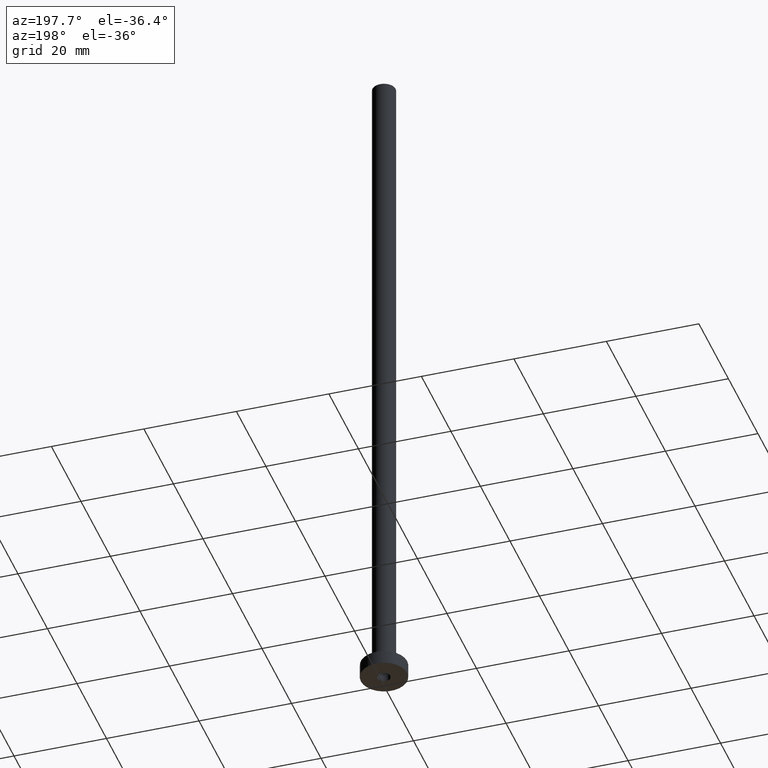
[diagram: clean part render]
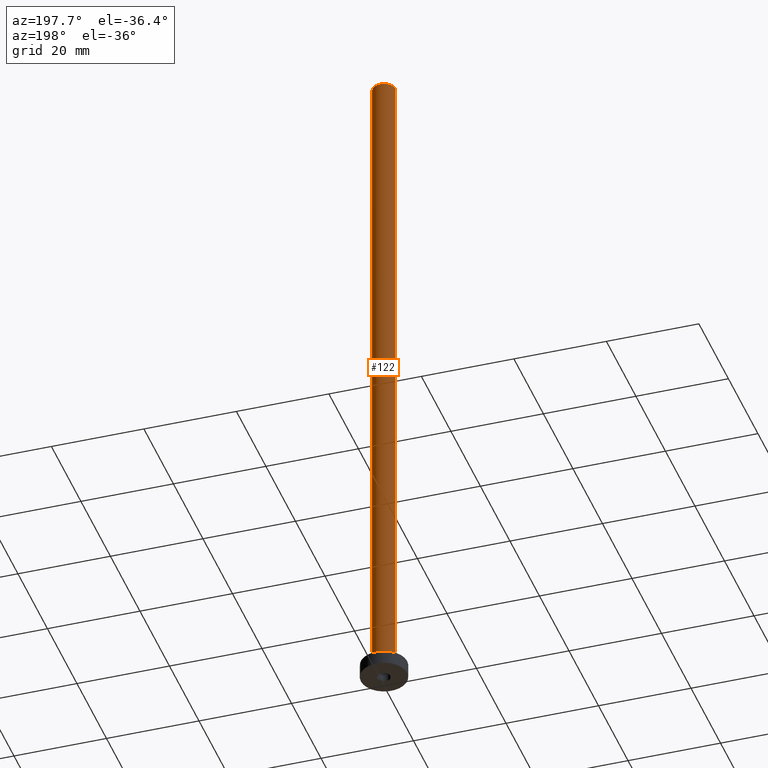
[diagram: same view with one face highlighted and labeled with its STEP entity id]
A machine part, auxiliary view. The second image highlights one B-rep face of the part: STEP entity #122.
In plain terms, the highlighted cylindrical surface (edge-blend (fillet) strip) has radius 2.5 mm, axis along (-0, -0, -1).
Its self-contained STEP definition (entity closure, byte-faithful):
#6 = EDGE_CURVE ( 'NONE', #67, #351, #92, .T. ) ;
#34 = VECTOR ( 'NONE', #180, 1000.000000000000000 ) ;
#67 = VERTEX_POINT ( 'NONE', #387 ) ;
#70 = CARTESIAN_POINT ( 'NONE',  ( 0.000000000000000000, 0.000000000000000000, 150.0000000000000000 ) ) ;
#79 = DIRECTION ( 'NONE',  ( 1.000000000000000000, 0.000000000000000000, 0.000000000000000000 ) ) ;
#91 = VERTEX_POINT ( 'NONE', #389 ) ;
#92 = CIRCLE ( 'NONE', #339, 2.500000000000000000 ) ;
#96 = EDGE_CURVE ( 'NONE', #414, #91, #219, .T. ) ;
#99 = CARTESIAN_POINT ( 'NONE',  ( 2.500000000000000000, 3.061616997868383141E-16, 3.299999999999997158 ) ) ;
#108 = AXIS2_PLACEMENT_3D ( 'NONE', #188, #284, #114 ) ;
#114 = DIRECTION ( 'NONE',  ( 1.000000000000000000, 0.000000000000000000, 0.000000000000000000 ) ) ;
#122 = ADVANCED_FACE ( 'NONE', ( #292 ), #429, .T. ) ;
#146 = VECTOR ( 'NONE', #163, 1000.000000000000000 ) ;
#155 = ORIENTED_EDGE ( 'NONE', *, *, #384, .T. ) ;
#158 = ORIENTED_EDGE ( 'NONE', *, *, #96, .T. ) ;
#163 = DIRECTION ( 'NONE',  ( -0.000000000000000000, -0.000000000000000000, -1.000000000000000000 ) ) ;
#180 = DIRECTION ( 'NONE',  ( -0.000000000000000000, -0.000000000000000000, -1.000000000000000000 ) ) ;
#188 = CARTESIAN_POINT ( 'NONE',  ( 0.000000000000000000, 0.000000000000000000, 3.299999999999997158 ) ) ;
#189 = DIRECTION ( 'NONE',  ( -0.000000000000000000, -0.000000000000000000, -1.000000000000000000 ) ) ;
#196 = CARTESIAN_POINT ( 'NONE',  ( -2.500000000000000000, 0.000000000000000000, 150.0000000000000000 ) ) ;
#204 = ORIENTED_EDGE ( 'NONE', *, *, #6, .F. ) ;
#209 = CARTESIAN_POINT ( 'NONE',  ( 2.500000000000000000, 3.061616997868383141E-16, 150.0000000000000000 ) ) ;
#219 = CIRCLE ( 'NONE', #108, 2.500000000000000000 ) ;
#236 = LINE ( 'NONE', #196, #146 ) ;
#246 = DIRECTION ( 'NONE',  ( 0.000000000000000000, 0.000000000000000000, 1.000000000000000000 ) ) ;
#255 = EDGE_CURVE ( 'NONE', #351, #91, #236, .T. ) ;
#276 = ORIENTED_EDGE ( 'NONE', *, *, #255, .F. ) ;
#284 = DIRECTION ( 'NONE',  ( 0.000000000000000000, 0.000000000000000000, 1.000000000000000000 ) ) ;
#292 = FACE_OUTER_BOUND ( 'NONE', #453, .T. ) ;
#319 = CARTESIAN_POINT ( 'NONE',  ( -2.500000000000000000, 0.000000000000000000, 150.0000000000000000 ) ) ;
#339 = AXIS2_PLACEMENT_3D ( 'NONE', #361, #246, #79 ) ;
#351 = VERTEX_POINT ( 'NONE', #319 ) ;
#356 = AXIS2_PLACEMENT_3D ( 'NONE', #70, #189, #396 ) ;
#361 = CARTESIAN_POINT ( 'NONE',  ( 0.000000000000000000, 0.000000000000000000, 150.0000000000000000 ) ) ;
#383 = LINE ( 'NONE', #209, #34 ) ;
#384 = EDGE_CURVE ( 'NONE', #67, #414, #383, .T. ) ;
#387 = CARTESIAN_POINT ( 'NONE',  ( 2.500000000000000000, 3.061616997868383141E-16, 150.0000000000000000 ) ) ;
#389 = CARTESIAN_POINT ( 'NONE',  ( -2.500000000000000000, 0.000000000000000000, 3.299999999999997158 ) ) ;
#396 = DIRECTION ( 'NONE',  ( -1.000000000000000000, 0.000000000000000000, 0.000000000000000000 ) ) ;
#414 = VERTEX_POINT ( 'NONE', #99 ) ;
#429 = CYLINDRICAL_SURFACE ( 'NONE', #356, 2.500000000000000000 ) ;
#453 = EDGE_LOOP ( 'NONE', ( #204, #155, #158, #276 ) ) ;